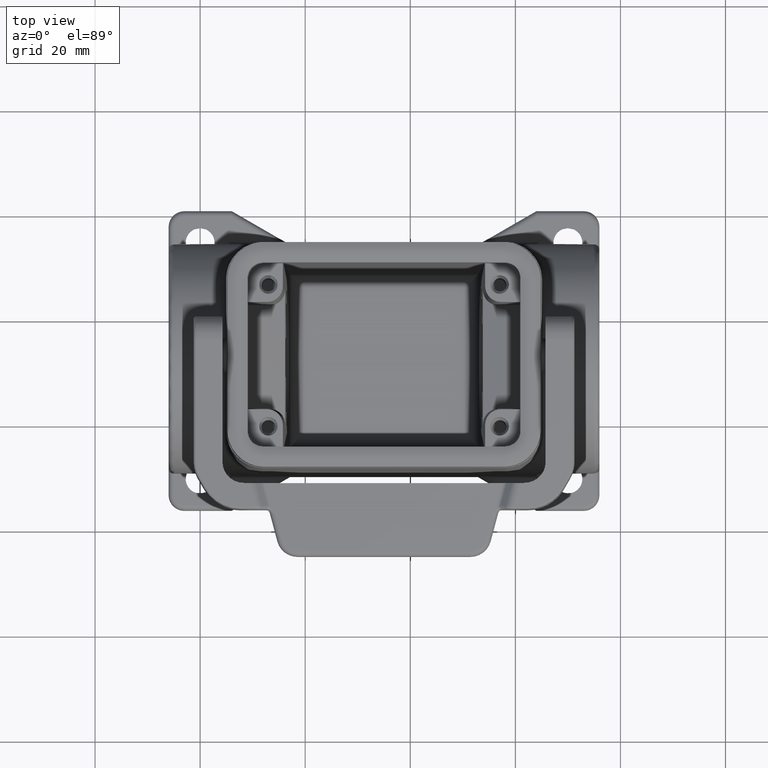
[diagram: clean part render]
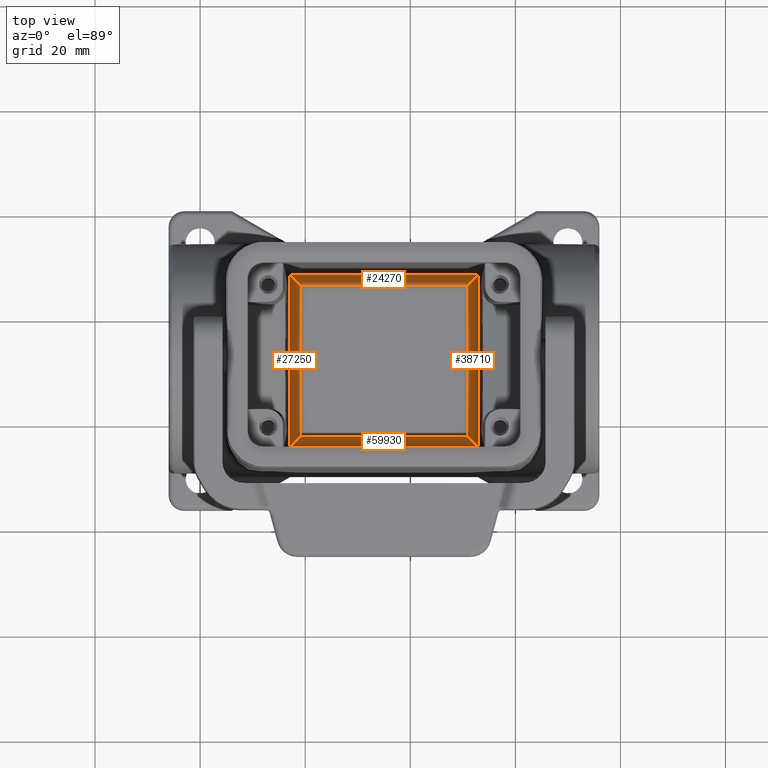
[diagram: same view with one multi-face feature highlighted, each face labeled with its STEP entity id]
A machine part, top view. The highlighted faces form ONE feature: a constant-radius fillet chain: 4 tangent blend faces with common blend radius 2 mm. The faces share edges in the B-rep.
Their STEP definitions:
[1] entity #24270 (Cylinder):
#23860=CARTESIAN_POINT('',(0.,47.6966971940296,65.));
#23870=DIRECTION('',(-1.,0.,0.));
#23880=DIRECTION('',(0.,1.,0.));
#23890=AXIS2_PLACEMENT_3D('',#23860,#23870,#23880);
#23900=CYLINDRICAL_SURFACE('',#23890,2.);
#23910=CARTESIAN_POINT('',(50.6369001940296,47.6966971940295,65.));
#23920=DIRECTION('',(-0.707106781186548,0.707106781186548,
1.73191211247099E-16));
#23930=DIRECTION('',(-0.707106781186548,-0.707106781186548,
-1.73191211247099E-16));
#23940=AXIS2_PLACEMENT_3D('',#23910,#23920,#23930);
#23950=ELLIPSE('',#23940,2.82842712474619,2.);
#23960=CARTESIAN_POINT('',(50.6369001940296,47.6966971940295,67.));
#23970=VERTEX_POINT('',#23960);
#23980=CARTESIAN_POINT('',(52.6363586766593,49.6961556766592,
65.0465379011157));
#23990=VERTEX_POINT('',#23980);
#24000=EDGE_CURVE('',#23970,#23990,#23950,.T.);
#24010=ORIENTED_EDGE('',*,*,#24000,.F.);
#24020=CARTESIAN_POINT('',(69.381712,49.6961556766592,65.0465379011157))
;
#24030=DIRECTION('',(1.,0.,0.));
#24040=VECTOR('',#24030,1.);
#24050=LINE('',#24020,#24040);
#24060=CARTESIAN_POINT('',(16.7453533233408,49.6961556766592,
65.0465379011157));
#24070=VERTEX_POINT('',#24060);
#24080=EDGE_CURVE('',#24070,#23990,#24050,.T.);
#24090=ORIENTED_EDGE('',*,*,#24080,.T.);
#24100=CARTESIAN_POINT('',(18.7448118059704,47.6966971940296,65.));
#24110=DIRECTION('',(-0.707106781186548,-0.707106781186548,
-8.65956056235493E-17));
#24120=DIRECTION('',(0.707106781186548,-0.707106781186548,
-8.65956056235493E-17));
#24130=AXIS2_PLACEMENT_3D('',#24100,#24110,#24120);
#24140=ELLIPSE('',#24130,2.82842712474619,2.);
#24150=CARTESIAN_POINT('',(18.7448118059704,47.6966971940296,67.));
#24160=VERTEX_POINT('',#24150);
#24170=EDGE_CURVE('',#24160,#24070,#24140,.T.);
#24180=ORIENTED_EDGE('',*,*,#24170,.T.);
#24190=CARTESIAN_POINT('',(82.381712,47.6966971940295,67.));
#24200=DIRECTION('',(1.,0.,0.));
#24210=VECTOR('',#24200,1.);
#24220=LINE('',#24190,#24210);
#24230=EDGE_CURVE('',#24160,#23970,#24220,.T.);
#24240=ORIENTED_EDGE('',*,*,#24230,.F.);
#24250=EDGE_LOOP('',(#24240,#24180,#24090,#24010));
#24260=FACE_OUTER_BOUND('',#24250,.T.);
#24270=ADVANCED_FACE('',(#24260),#23900,.F.);
[2] entity #38710 (Cylinder):
#13950=CARTESIAN_POINT('',(16.7453533233408,16.8051503233408,
65.0465379011157));
#13960=VERTEX_POINT('',#13950);
#24060=CARTESIAN_POINT('',(16.7453533233408,49.6961556766592,
65.0465379011157));
#24070=VERTEX_POINT('',#24060);
#24100=CARTESIAN_POINT('',(18.7448118059704,47.6966971940296,65.));
#24110=DIRECTION('',(-0.707106781186548,-0.707106781186548,
-8.65956056235493E-17));
#24120=DIRECTION('',(0.707106781186548,-0.707106781186548,
-8.65956056235493E-17));
#24130=AXIS2_PLACEMENT_3D('',#24100,#24110,#24120);
#24140=ELLIPSE('',#24130,2.82842712474619,2.);
#24150=CARTESIAN_POINT('',(18.7448118059704,47.6966971940296,67.));
#24160=VERTEX_POINT('',#24150);
#24170=EDGE_CURVE('',#24160,#24070,#24140,.T.);
#34520=CARTESIAN_POINT('',(18.7448118059704,-2.44929359829471E-16,67.));
#34530=DIRECTION('',(-2.85039635158937E-18,-1.,-1.22464679914735E-16));
#34540=VECTOR('',#34530,1.);
#34550=LINE('',#34520,#34540);
#34560=CARTESIAN_POINT('',(18.7448118059704,18.8046088059704,67.));
#34570=VERTEX_POINT('',#34560);
#34580=EDGE_CURVE('',#24160,#34570,#34550,.T.);
#38490=CARTESIAN_POINT('',(18.7448118059704,0.,65.));
#38500=DIRECTION('',(-2.85039635158937E-18,-1.,-1.22464679914735E-16));
#38510=DIRECTION('',(0.,-1.22464679914735E-16,1.));
#38520=AXIS2_PLACEMENT_3D('',#38490,#38500,#38510);
#38530=CYLINDRICAL_SURFACE('',#38520,2.);
#38540=CARTESIAN_POINT('',(18.7448118059704,18.8046088059704,65.));
#38550=DIRECTION('',(0.707106781186548,-0.707106781186548,
-8.65956056235493E-17));
#38560=DIRECTION('',(0.707106781186548,0.707106781186548,
8.65956056235493E-17));
#38570=AXIS2_PLACEMENT_3D('',#38540,#38550,#38560);
#38580=ELLIPSE('',#38570,2.82842712474619,2.);
#38590=EDGE_CURVE('',#34570,#13960,#38580,.T.);
#38600=ORIENTED_EDGE('',*,*,#38590,.T.);
#38610=ORIENTED_EDGE('',*,*,#34580,.T.);
#38620=ORIENTED_EDGE('',*,*,#24170,.F.);
#38630=CARTESIAN_POINT('',(16.7453533233408,-2.70400564191968E-31,
65.0465379011157));
#38640=DIRECTION('',(-2.85039635158938E-18,-1.,-1.22464679914735E-16));
#38650=VECTOR('',#38640,1.);
#38660=LINE('',#38630,#38650);
#38670=EDGE_CURVE('',#24070,#13960,#38660,.T.);
#38680=ORIENTED_EDGE('',*,*,#38670,.F.);
#38690=EDGE_LOOP('',(#38680,#38620,#38610,#38600));
#38700=FACE_OUTER_BOUND('',#38690,.T.);
#38710=ADVANCED_FACE('',(#38700),#38530,.F.);
[3] entity #59930 (Cylinder):
#13950=CARTESIAN_POINT('',(16.7453533233408,16.8051503233408,
65.0465379011157));
#13960=VERTEX_POINT('',#13950);
#14450=CARTESIAN_POINT('',(52.6363586766593,16.8051503233408,
65.0465379011157));
#14460=VERTEX_POINT('',#14450);
#14490=CARTESIAN_POINT('',(82.381712,16.8051503233408,65.0465379011157))
;
#14500=DIRECTION('',(-1.,0.,0.));
#14510=VECTOR('',#14500,1.);
#14520=LINE('',#14490,#14510);
#14530=EDGE_CURVE('',#14460,#13960,#14520,.T.);
#27120=CARTESIAN_POINT('',(50.6369001940296,18.8046088059704,67.));
#27130=VERTEX_POINT('',#27120);
#27160=CARTESIAN_POINT('',(50.6369001940296,18.8046088059704,65.));
#27170=DIRECTION('',(0.707106781186548,0.707106781186548,
1.73191211247099E-16));
#27180=DIRECTION('',(-0.707106781186548,0.707106781186548,
1.73191211247099E-16));
#27190=AXIS2_PLACEMENT_3D('',#27160,#27170,#27180);
#27200=ELLIPSE('',#27190,2.82842712474619,2.);
#27210=EDGE_CURVE('',#27130,#14460,#27200,.T.);
#34560=CARTESIAN_POINT('',(18.7448118059704,18.8046088059704,67.));
#34570=VERTEX_POINT('',#34560);
#34600=CARTESIAN_POINT('',(-13.,18.8046088059704,67.));
#34610=DIRECTION('',(1.,0.,0.));
#34620=VECTOR('',#34610,1.);
#34630=LINE('',#34600,#34620);
#34640=EDGE_CURVE('',#34570,#27130,#34630,.T.);
#38540=CARTESIAN_POINT('',(18.7448118059704,18.8046088059704,65.));
#38550=DIRECTION('',(0.707106781186548,-0.707106781186548,
-8.65956056235493E-17));
#38560=DIRECTION('',(0.707106781186548,0.707106781186548,
8.65956056235493E-17));
#38570=AXIS2_PLACEMENT_3D('',#38540,#38550,#38560);
#38580=ELLIPSE('',#38570,2.82842712474619,2.);
#38590=EDGE_CURVE('',#34570,#13960,#38580,.T.);
#59820=CARTESIAN_POINT('',(82.381712,18.8046088059704,65.));
#59830=DIRECTION('',(-1.,0.,0.));
#59840=DIRECTION('',(0.,-1.,-1.22464679914735E-16));
#59850=AXIS2_PLACEMENT_3D('',#59820,#59830,#59840);
#59860=CYLINDRICAL_SURFACE('',#59850,2.);
#59870=ORIENTED_EDGE('',*,*,#27210,.T.);
#59880=ORIENTED_EDGE('',*,*,#34640,.T.);
#59890=ORIENTED_EDGE('',*,*,#38590,.F.);
#59900=ORIENTED_EDGE('',*,*,#14530,.T.);
#59910=EDGE_LOOP('',(#59900,#59890,#59880,#59870));
#59920=FACE_OUTER_BOUND('',#59910,.T.);
#59930=ADVANCED_FACE('',(#59920),#59860,.F.);
[4] entity #27250 (Cylinder):
#14450=CARTESIAN_POINT('',(52.6363586766593,16.8051503233408,
65.0465379011157));
#14460=VERTEX_POINT('',#14450);
#23910=CARTESIAN_POINT('',(50.6369001940296,47.6966971940295,65.));
#23920=DIRECTION('',(-0.707106781186548,0.707106781186548,
1.73191211247099E-16));
#23930=DIRECTION('',(-0.707106781186548,-0.707106781186548,
-1.73191211247099E-16));
#23940=AXIS2_PLACEMENT_3D('',#23910,#23920,#23930);
#23950=ELLIPSE('',#23940,2.82842712474619,2.);
#23960=CARTESIAN_POINT('',(50.6369001940296,47.6966971940295,67.));
#23970=VERTEX_POINT('',#23960);
#23980=CARTESIAN_POINT('',(52.6363586766593,49.6961556766592,
65.0465379011157));
#23990=VERTEX_POINT('',#23980);
#24000=EDGE_CURVE('',#23970,#23990,#23950,.T.);
#26960=CARTESIAN_POINT('',(50.6369001940296,-7.96020419445779E-15,65.));
#26970=DIRECTION('',(2.85039635158937E-18,-1.,-2.44929359829471E-16));
#26980=DIRECTION('',(0.,-2.44929359829471E-16,1.));
#26990=AXIS2_PLACEMENT_3D('',#26960,#26970,#26980);
#27000=CYLINDRICAL_SURFACE('',#26990,2.);
#27010=CARTESIAN_POINT('',(52.6363586766593,-7.96590344362184E-15,
65.0465379011157));
#27020=DIRECTION('',(2.85039635158938E-18,-1.,-2.44929359829471E-16));
#27030=VECTOR('',#27020,1.);
#27040=LINE('',#27010,#27030);
#27050=EDGE_CURVE('',#23990,#14460,#27040,.T.);
#27060=ORIENTED_EDGE('',*,*,#27050,.T.);
#27070=ORIENTED_EDGE('',*,*,#24000,.T.);
#27080=CARTESIAN_POINT('',(50.6369001940296,-8.45006291411673E-15,67.));
#27090=DIRECTION('',(2.85039635158937E-18,-1.,-2.44929359829471E-16));
#27100=VECTOR('',#27090,1.);
#27110=LINE('',#27080,#27100);
#27120=CARTESIAN_POINT('',(50.6369001940296,18.8046088059704,67.));
#27130=VERTEX_POINT('',#27120);
#27140=EDGE_CURVE('',#23970,#27130,#27110,.T.);
#27150=ORIENTED_EDGE('',*,*,#27140,.F.);
#27160=CARTESIAN_POINT('',(50.6369001940296,18.8046088059704,65.));
#27170=DIRECTION('',(0.707106781186548,0.707106781186548,
1.73191211247099E-16));
#27180=DIRECTION('',(-0.707106781186548,0.707106781186548,
1.73191211247099E-16));
#27190=AXIS2_PLACEMENT_3D('',#27160,#27170,#27180);
#27200=ELLIPSE('',#27190,2.82842712474619,2.);
#27210=EDGE_CURVE('',#27130,#14460,#27200,.T.);
#27220=ORIENTED_EDGE('',*,*,#27210,.F.);
#27230=EDGE_LOOP('',(#27220,#27150,#27070,#27060));
#27240=FACE_OUTER_BOUND('',#27230,.T.);
#27250=ADVANCED_FACE('',(#27240),#27000,.F.);